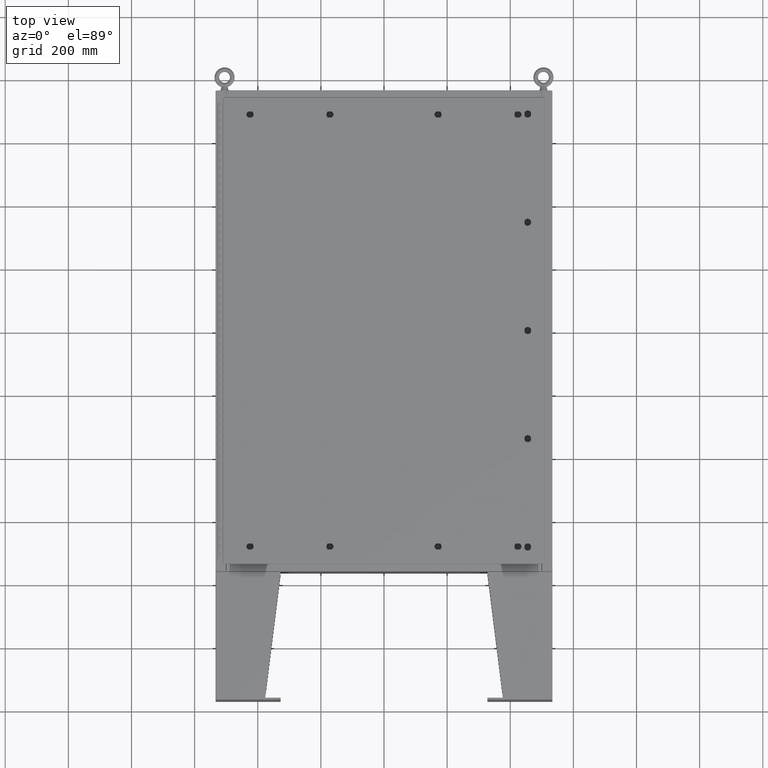
[diagram: clean part render]
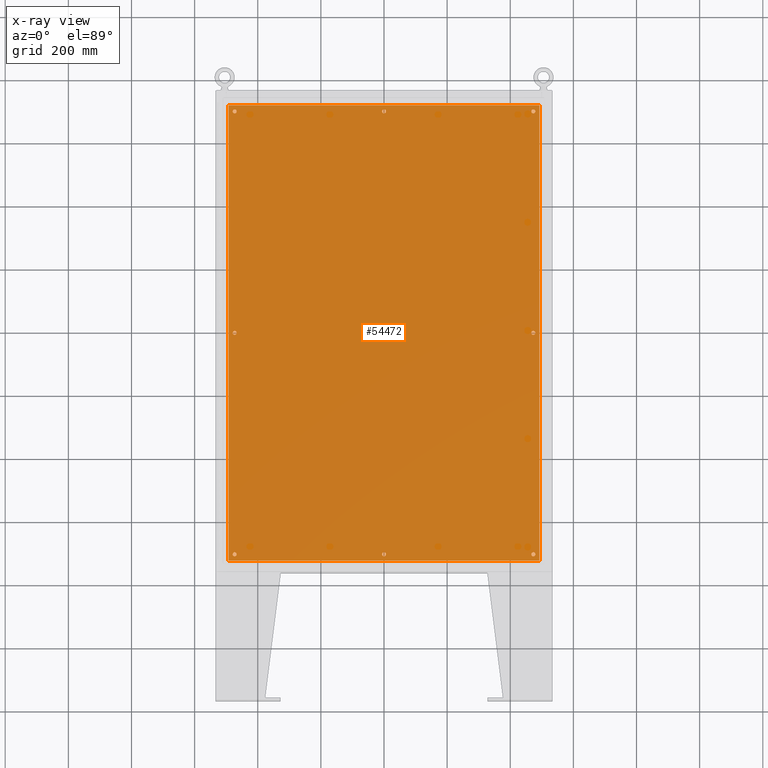
[diagram: x-ray — body ghosted, one internal face saturated and labeled with its STEP entity id]
A machine part, top view, then the same camera in x-ray: the body is ghosted and one INTERNAL B-rep face — a face not visible from any outside direction — is saturated and labeled: STEP entity #54472.
In plain terms, the highlighted planar face has unit normal (0, 0, -1).
Its self-contained STEP definition (entity closure, byte-faithful):
#238 = CARTESIAN_POINT ( 'NONE',  ( 18.62500000000000000, 3.731924441611932400E-015, -0.1039999999999999800 ) ) ;
#397 = DIRECTION ( 'NONE',  ( -1.000000000000000000, 0.0000000000000000000, 0.0000000000000000000 ) ) ;
#552 = CARTESIAN_POINT ( 'NONE',  ( 18.37500000000000000, 3.762540611590616200E-015, -0.1039999999999999800 ) ) ;
#802 = EDGE_CURVE ( 'NONE', #20901, #21294, #6926, .T. ) ;
#921 = ORIENTED_EDGE ( 'NONE', *, *, #35698, .T. ) ;
#1054 = VERTEX_POINT ( 'NONE', #63077 ) ;
#1349 = VERTEX_POINT ( 'NONE', #25678 ) ;
#1563 = DIRECTION ( 'NONE',  ( -1.000000000000000000, 0.0000000000000000000, 0.0000000000000000000 ) ) ;
#2203 = CIRCLE ( 'NONE', #14287, 0.2499999999999987000 ) ;
#2250 = CARTESIAN_POINT ( 'NONE',  ( 0.0000000000000000000, 0.0000000000000000000, -0.1039999999999999800 ) ) ;
#2953 = EDGE_CURVE ( 'NONE', #40639, #26483, #16560, .T. ) ;
#3085 = ORIENTED_EDGE ( 'NONE', *, *, #35226, .F. ) ;
#3302 = EDGE_LOOP ( 'NONE', ( #43450, #26774 ) ) ;
#3629 = DIRECTION ( 'NONE',  ( -0.0000000000000000000, -0.0000000000000000000, 1.000000000000000000 ) ) ;
#4169 = CARTESIAN_POINT ( 'NONE',  ( -19.49999999999999600, -28.38300000000000300, -0.1040000000000009400 ) ) ;
#4331 = ORIENTED_EDGE ( 'NONE', *, *, #4788, .T. ) ;
#4359 = EDGE_LOOP ( 'NONE', ( #35251, #921 ) ) ;
#4786 = AXIS2_PLACEMENT_3D ( 'NONE', #13546, #47581, #18401 ) ;
#4788 = EDGE_CURVE ( 'NONE', #8016, #40763, #2203, .T. ) ;
#5134 = DIRECTION ( 'NONE',  ( -1.000000000000000000, 0.0000000000000000000, 0.0000000000000000000 ) ) ;
#5339 = CIRCLE ( 'NONE', #6068, 0.2499999999999987000 ) ;
#5393 = DIRECTION ( 'NONE',  ( -1.000000000000000000, 0.0000000000000000000, 0.0000000000000000000 ) ) ;
#5593 = CIRCLE ( 'NONE', #4786, 0.2500000000000008900 ) ;
#6068 = AXIS2_PLACEMENT_3D ( 'NONE', #22383, #56449, #27227 ) ;
#6337 = VECTOR ( 'NONE', #43021, 39.37007874015748100 ) ;
#6926 = CIRCLE ( 'NONE', #51212, 0.2499999999999998600 ) ;
#7458 = CIRCLE ( 'NONE', #40941, 0.2499999999999987000 ) ;
#8016 = VERTEX_POINT ( 'NONE', #23096 ) ;
#8489 = DIRECTION ( 'NONE',  ( -0.0000000000000000000, -0.0000000000000000000, 1.000000000000000000 ) ) ;
#8505 = CARTESIAN_POINT ( 'NONE',  ( 18.87500000000000000, 3.731924441611932400E-015, -0.1039999999999999800 ) ) ;
#10306 = DIRECTION ( 'NONE',  ( -0.0000000000000000000, -0.0000000000000000000, 1.000000000000000000 ) ) ;
#11072 = DIRECTION ( 'NONE',  ( -0.0000000000000000000, -0.0000000000000000000, 1.000000000000000000 ) ) ;
#11218 = CIRCLE ( 'NONE', #48900, 0.2500000000000008900 ) ;
#11294 = FACE_BOUND ( 'NONE', #52967, .T. ) ;
#11432 = DIRECTION ( 'NONE',  ( -0.0000000000000000000, -0.0000000000000000000, 1.000000000000000000 ) ) ;
#12913 = AXIS2_PLACEMENT_3D ( 'NONE', #49356, #20166, #54276 ) ;
#13096 = DIRECTION ( 'NONE',  ( -0.0000000000000000000, -0.0000000000000000000, 1.000000000000000000 ) ) ;
#13416 = VERTEX_POINT ( 'NONE', #552 ) ;
#13546 = CARTESIAN_POINT ( 'NONE',  ( -18.62500000000000400, 27.62500000000000400, -0.1039999999999999800 ) ) ;
#14287 = AXIS2_PLACEMENT_3D ( 'NONE', #14709, #10306, #5393 ) ;
#14709 = CARTESIAN_POINT ( 'NONE',  ( 18.62500000000000000, 27.62500000000000400, -0.1039999999999999800 ) ) ;
#14783 = EDGE_CURVE ( 'NONE', #54466, #20269, #19058, .T. ) ;
#15222 = CIRCLE ( 'NONE', #53174, 0.2500000000000011700 ) ;
#15926 = CARTESIAN_POINT ( 'NONE',  ( 19.50000000000000000, 28.38300000000000300, -0.1040000000000009400 ) ) ;
#16150 = EDGE_LOOP ( 'NONE', ( #3085, #61255, #50426, #27772 ) ) ;
#16560 = CIRCLE ( 'NONE', #56608, 0.2500000000000008900 ) ;
#16591 = ORIENTED_EDGE ( 'NONE', *, *, #37841, .T. ) ;
#17201 = CIRCLE ( 'NONE', #36296, 0.2500000000000008900 ) ;
#17451 = LINE ( 'NONE', #50393, #28868 ) ;
#17574 = DIRECTION ( 'NONE',  ( -0.0000000000000000000, -0.0000000000000000000, 1.000000000000000000 ) ) ;
#18350 = DIRECTION ( 'NONE',  ( -1.000000000000000000, 0.0000000000000000000, 0.0000000000000000000 ) ) ;
#18401 = DIRECTION ( 'NONE',  ( -1.000000000000000000, 0.0000000000000000000, 0.0000000000000000000 ) ) ;
#18446 = CARTESIAN_POINT ( 'NONE',  ( -18.87500000000000000, -7.992687152332741600E-016, -0.1039999999999999800 ) ) ;
#18750 = EDGE_LOOP ( 'NONE', ( #16591, #4331 ) ) ;
#18844 = EDGE_LOOP ( 'NONE', ( #37866, #47006 ) ) ;
#19058 = LINE ( 'NONE', #15926, #30495 ) ;
#19404 = AXIS2_PLACEMENT_3D ( 'NONE', #40161, #11072, #45098 ) ;
#20166 = DIRECTION ( 'NONE',  ( -0.0000000000000000000, -0.0000000000000000000, 1.000000000000000000 ) ) ;
#20269 = VERTEX_POINT ( 'NONE', #44863 ) ;
#20468 = VERTEX_POINT ( 'NONE', #28148 ) ;
#20901 = VERTEX_POINT ( 'NONE', #27836 ) ;
#21294 = VERTEX_POINT ( 'NONE', #24922 ) ;
#21390 = VERTEX_POINT ( 'NONE', #47805 ) ;
#21393 = DIRECTION ( 'NONE',  ( -0.0000000000000000000, -0.0000000000000000000, 1.000000000000000000 ) ) ;
#21594 = EDGE_CURVE ( 'NONE', #1349, #1054, #25989, .T. ) ;
#22383 = CARTESIAN_POINT ( 'NONE',  ( -18.62500000000000000, -27.62500000000000400, -0.1039999999999999800 ) ) ;
#22713 = EDGE_CURVE ( 'NONE', #20468, #21390, #15222, .T. ) ;
#22821 = LINE ( 'NONE', #34237, #32690 ) ;
#23092 = CIRCLE ( 'NONE', #44219, 0.2500000000000008900 ) ;
#23096 = CARTESIAN_POINT ( 'NONE',  ( 18.37500000000000400, 27.62500000000000400, -0.1039999999999999800 ) ) ;
#24187 = FACE_BOUND ( 'NONE', #37320, .T. ) ;
#24898 = DIRECTION ( 'NONE',  ( -0.0000000000000000000, -0.0000000000000000000, 1.000000000000000000 ) ) ;
#24922 = CARTESIAN_POINT ( 'NONE',  ( -0.2499999999999998600, 27.62500000000000400, -0.1039999999999999800 ) ) ;
#25448 = EDGE_CURVE ( 'NONE', #48278, #54466, #22821, .T. ) ;
#25678 = CARTESIAN_POINT ( 'NONE',  ( 18.87500000000000000, -27.62500000000000400, -0.1039999999999999800 ) ) ;
#25695 = FACE_BOUND ( 'NONE', #18844, .T. ) ;
#25989 = CIRCLE ( 'NONE', #31882, 0.2499999999999987000 ) ;
#26272 = DIRECTION ( 'NONE',  ( 0.0000000000000000000, -1.000000000000000000, 0.0000000000000000000 ) ) ;
#26483 = VERTEX_POINT ( 'NONE', #28542 ) ;
#26580 = DIRECTION ( 'NONE',  ( -1.000000000000000000, 0.0000000000000000000, -0.0000000000000000000 ) ) ;
#26774 = ORIENTED_EDGE ( 'NONE', *, *, #52008, .T. ) ;
#27227 = DIRECTION ( 'NONE',  ( -1.000000000000000000, 0.0000000000000000000, 0.0000000000000000000 ) ) ;
#27353 = EDGE_CURVE ( 'NONE', #1054, #1349, #50100, .T. ) ;
#27448 = ORIENTED_EDGE ( 'NONE', *, *, #22713, .T. ) ;
#27772 = ORIENTED_EDGE ( 'NONE', *, *, #25448, .F. ) ;
#27836 = CARTESIAN_POINT ( 'NONE',  ( 0.2499999999999998600, 27.62500000000000400, -0.1039999999999999800 ) ) ;
#28148 = CARTESIAN_POINT ( 'NONE',  ( -0.2500000000000011700, -27.62500000000000400, -0.1039999999999999800 ) ) ;
#28542 = CARTESIAN_POINT ( 'NONE',  ( -18.37500000000000000, -8.298848852119578500E-016, -0.1039999999999999800 ) ) ;
#28670 = CARTESIAN_POINT ( 'NONE',  ( -18.62500000000000000, -27.62500000000000400, -0.1039999999999999800 ) ) ;
#28757 = FACE_BOUND ( 'NONE', #4359, .T. ) ;
#28868 = VECTOR ( 'NONE', #26272, 39.37007874015748100 ) ;
#29015 = EDGE_CURVE ( 'NONE', #36059, #13416, #42269, .T. ) ;
#29331 = DIRECTION ( 'NONE',  ( 0.0000000000000000000, 1.000000000000000000, 0.0000000000000000000 ) ) ;
#29444 = DIRECTION ( 'NONE',  ( -0.0000000000000000000, -0.0000000000000000000, 1.000000000000000000 ) ) ;
#30266 = CARTESIAN_POINT ( 'NONE',  ( -18.87500000000000400, 27.62500000000000400, -0.1039999999999999800 ) ) ;
#30495 = VECTOR ( 'NONE', #59045, 39.37007874015748100 ) ;
#30634 = DIRECTION ( 'NONE',  ( -0.0000000000000000000, -0.0000000000000000000, 1.000000000000000000 ) ) ;
#30888 = CARTESIAN_POINT ( 'NONE',  ( 18.62500000000000000, -27.62500000000000400, -0.1039999999999999800 ) ) ;
#31265 = CARTESIAN_POINT ( 'NONE',  ( 19.38299999999999900, -28.38299999999999600, -0.1040000000000009100 ) ) ;
#31431 = EDGE_LOOP ( 'NONE', ( #43768, #27448 ) ) ;
#31882 = AXIS2_PLACEMENT_3D ( 'NONE', #30888, #17574, #18350 ) ;
#32678 = CARTESIAN_POINT ( 'NONE',  ( 0.0000000000000000000, -27.62500000000000400, -0.1039999999999999800 ) ) ;
#32690 = VECTOR ( 'NONE', #29331, 39.37007874015748100 ) ;
#33052 = VERTEX_POINT ( 'NONE', #33739 ) ;
#33264 = VERTEX_POINT ( 'NONE', #30266 ) ;
#33586 = DIRECTION ( 'NONE',  ( -1.000000000000000000, 0.0000000000000000000, 0.0000000000000000000 ) ) ;
#33739 = CARTESIAN_POINT ( 'NONE',  ( -18.87500000000000000, -27.62500000000000400, -0.1039999999999999800 ) ) ;
#34211 = DIRECTION ( 'NONE',  ( -0.0000000000000000000, -0.0000000000000000000, 1.000000000000000000 ) ) ;
#34237 = CARTESIAN_POINT ( 'NONE',  ( 19.38299999999999900, -28.38299999999999600, -0.1040000000000009100 ) ) ;
#35226 = EDGE_CURVE ( 'NONE', #35380, #48278, #46647, .T. ) ;
#35251 = ORIENTED_EDGE ( 'NONE', *, *, #802, .T. ) ;
#35380 = VERTEX_POINT ( 'NONE', #54316 ) ;
#35614 = FACE_OUTER_BOUND ( 'NONE', #16150, .T. ) ;
#35633 = EDGE_CURVE ( 'NONE', #21390, #20468, #36027, .T. ) ;
#35698 = EDGE_CURVE ( 'NONE', #21294, #20901, #44397, .T. ) ;
#36027 = CIRCLE ( 'NONE', #12913, 0.2500000000000011700 ) ;
#36059 = VERTEX_POINT ( 'NONE', #8505 ) ;
#36296 = AXIS2_PLACEMENT_3D ( 'NONE', #42206, #13096, #47114 ) ;
#36982 = ORIENTED_EDGE ( 'NONE', *, *, #27353, .T. ) ;
#37153 = FACE_BOUND ( 'NONE', #31431, .T. ) ;
#37320 = EDGE_LOOP ( 'NONE', ( #44515, #47032 ) ) ;
#37574 = CARTESIAN_POINT ( 'NONE',  ( 18.62500000000000000, 27.62500000000000400, -0.1039999999999999800 ) ) ;
#37587 = DIRECTION ( 'NONE',  ( -1.000000000000000000, 0.0000000000000000000, 0.0000000000000000000 ) ) ;
#37841 = EDGE_CURVE ( 'NONE', #40763, #8016, #43527, .T. ) ;
#37866 = ORIENTED_EDGE ( 'NONE', *, *, #46357, .T. ) ;
#38692 = VERTEX_POINT ( 'NONE', #41441 ) ;
#40161 = CARTESIAN_POINT ( 'NONE',  ( 0.0000000000000000000, 27.62500000000000400, -0.1039999999999999800 ) ) ;
#40450 = ORIENTED_EDGE ( 'NONE', *, *, #47398, .T. ) ;
#40532 = CARTESIAN_POINT ( 'NONE',  ( 18.62500000000000000, -27.62500000000000400, -0.1039999999999999800 ) ) ;
#40639 = VERTEX_POINT ( 'NONE', #18446 ) ;
#40763 = VERTEX_POINT ( 'NONE', #58280 ) ;
#40941 = AXIS2_PLACEMENT_3D ( 'NONE', #28670, #62762, #33586 ) ;
#41441 = CARTESIAN_POINT ( 'NONE',  ( -18.37500000000000400, 27.62500000000000400, -0.1039999999999999800 ) ) ;
#42206 = CARTESIAN_POINT ( 'NONE',  ( 18.62500000000000000, 3.731924441611932400E-015, -0.1039999999999999800 ) ) ;
#42269 = CIRCLE ( 'NONE', #56343, 0.2500000000000008900 ) ;
#42467 = DIRECTION ( 'NONE',  ( -1.000000000000000000, 0.0000000000000000000, 0.0000000000000000000 ) ) ;
#43021 = DIRECTION ( 'NONE',  ( 1.000000000000000000, -0.0000000000000000000, -0.0000000000000000000 ) ) ;
#43450 = ORIENTED_EDGE ( 'NONE', *, *, #51450, .T. ) ;
#43527 = CIRCLE ( 'NONE', #58694, 0.2499999999999987000 ) ;
#43768 = ORIENTED_EDGE ( 'NONE', *, *, #35633, .T. ) ;
#44219 = AXIS2_PLACEMENT_3D ( 'NONE', #59819, #30634, #1563 ) ;
#44397 = CIRCLE ( 'NONE', #19404, 0.2499999999999998600 ) ;
#44515 = ORIENTED_EDGE ( 'NONE', *, *, #44971, .T. ) ;
#44863 = CARTESIAN_POINT ( 'NONE',  ( -19.38299999999999900, 28.38299999999999600, -0.1040000000000052800 ) ) ;
#44971 = EDGE_CURVE ( 'NONE', #51208, #33052, #5339, .T. ) ;
#45098 = DIRECTION ( 'NONE',  ( -1.000000000000000000, 0.0000000000000000000, 0.0000000000000000000 ) ) ;
#45445 = DIRECTION ( 'NONE',  ( -1.000000000000000000, 0.0000000000000000000, 0.0000000000000000000 ) ) ;
#46357 = EDGE_CURVE ( 'NONE', #26483, #40639, #11218, .T. ) ;
#46647 = LINE ( 'NONE', #4169, #6337 ) ;
#47006 = ORIENTED_EDGE ( 'NONE', *, *, #2953, .T. ) ;
#47032 = ORIENTED_EDGE ( 'NONE', *, *, #60142, .T. ) ;
#47114 = DIRECTION ( 'NONE',  ( -1.000000000000000000, 0.0000000000000000000, 0.0000000000000000000 ) ) ;
#47398 = EDGE_CURVE ( 'NONE', #13416, #36059, #17201, .T. ) ;
#47581 = DIRECTION ( 'NONE',  ( -0.0000000000000000000, -0.0000000000000000000, 1.000000000000000000 ) ) ;
#47805 = CARTESIAN_POINT ( 'NONE',  ( 0.2500000000000011700, -27.62500000000000400, -0.1039999999999999800 ) ) ;
#48054 = AXIS2_PLACEMENT_3D ( 'NONE', #2250, #55827, #26580 ) ;
#48278 = VERTEX_POINT ( 'NONE', #31265 ) ;
#48333 = CARTESIAN_POINT ( 'NONE',  ( -18.37500000000000400, -27.62500000000000400, -0.1039999999999999800 ) ) ;
#48573 = FACE_BOUND ( 'NONE', #3302, .T. ) ;
#48900 = AXIS2_PLACEMENT_3D ( 'NONE', #58643, #29444, #397 ) ;
#49356 = CARTESIAN_POINT ( 'NONE',  ( 0.0000000000000000000, -27.62500000000000400, -0.1039999999999999800 ) ) ;
#50100 = CIRCLE ( 'NONE', #50587, 0.2499999999999987000 ) ;
#50108 = FACE_BOUND ( 'NONE', #55200, .T. ) ;
#50393 = CARTESIAN_POINT ( 'NONE',  ( -19.38299999999999900, 28.38299999999999600, -0.1040000000000052800 ) ) ;
#50426 = ORIENTED_EDGE ( 'NONE', *, *, #14783, .F. ) ;
#50578 = CARTESIAN_POINT ( 'NONE',  ( 0.0000000000000000000, 27.62500000000000400, -0.1039999999999999800 ) ) ;
#50587 = AXIS2_PLACEMENT_3D ( 'NONE', #40532, #11432, #45445 ) ;
#50907 = PLANE ( 'NONE',  #48054 ) ;
#51208 = VERTEX_POINT ( 'NONE', #48333 ) ;
#51212 = AXIS2_PLACEMENT_3D ( 'NONE', #50578, #21393, #55473 ) ;
#51450 = EDGE_CURVE ( 'NONE', #38692, #33264, #23092, .T. ) ;
#52008 = EDGE_CURVE ( 'NONE', #33264, #38692, #5593, .T. ) ;
#52967 = EDGE_LOOP ( 'NONE', ( #56918, #36982 ) ) ;
#53174 = AXIS2_PLACEMENT_3D ( 'NONE', #32678, #3629, #37587 ) ;
#54096 = CARTESIAN_POINT ( 'NONE',  ( -18.62500000000000000, -8.298848852119578500E-016, -0.1039999999999999800 ) ) ;
#54276 = DIRECTION ( 'NONE',  ( -1.000000000000000000, 0.0000000000000000000, 0.0000000000000000000 ) ) ;
#54316 = CARTESIAN_POINT ( 'NONE',  ( -19.38299999999999900, -28.38300000000000300, -0.1040000000000009400 ) ) ;
#54466 = VERTEX_POINT ( 'NONE', #60479 ) ;
#54472 = ADVANCED_FACE ( 'NONE', ( #37153, #28757, #50108, #25695, #24187, #11294, #61526, #48573, #35614 ), #50907, .T. ) ;
#55200 = EDGE_LOOP ( 'NONE', ( #62817, #40450 ) ) ;
#55473 = DIRECTION ( 'NONE',  ( -1.000000000000000000, 0.0000000000000000000, 0.0000000000000000000 ) ) ;
#55827 = DIRECTION ( 'NONE',  ( 0.0000000000000000000, 0.0000000000000000000, -1.000000000000000000 ) ) ;
#56343 = AXIS2_PLACEMENT_3D ( 'NONE', #238, #34211, #5134 ) ;
#56449 = DIRECTION ( 'NONE',  ( -0.0000000000000000000, -0.0000000000000000000, 1.000000000000000000 ) ) ;
#56608 = AXIS2_PLACEMENT_3D ( 'NONE', #54096, #24898, #59015 ) ;
#56918 = ORIENTED_EDGE ( 'NONE', *, *, #21594, .T. ) ;
#58280 = CARTESIAN_POINT ( 'NONE',  ( 18.87500000000000000, 27.62500000000000400, -0.1039999999999999800 ) ) ;
#58643 = CARTESIAN_POINT ( 'NONE',  ( -18.62500000000000000, -8.298848852119578500E-016, -0.1039999999999999800 ) ) ;
#58683 = EDGE_CURVE ( 'NONE', #20269, #35380, #17451, .T. ) ;
#58694 = AXIS2_PLACEMENT_3D ( 'NONE', #37574, #8489, #42467 ) ;
#59015 = DIRECTION ( 'NONE',  ( -1.000000000000000000, 0.0000000000000000000, 0.0000000000000000000 ) ) ;
#59045 = DIRECTION ( 'NONE',  ( -1.000000000000000000, -0.0000000000000000000, -0.0000000000000000000 ) ) ;
#59819 = CARTESIAN_POINT ( 'NONE',  ( -18.62500000000000400, 27.62500000000000400, -0.1039999999999999800 ) ) ;
#60142 = EDGE_CURVE ( 'NONE', #33052, #51208, #7458, .T. ) ;
#60479 = CARTESIAN_POINT ( 'NONE',  ( 19.38299999999999900, 28.38299999999999600, -0.1040000000000009100 ) ) ;
#61255 = ORIENTED_EDGE ( 'NONE', *, *, #58683, .F. ) ;
#61526 = FACE_BOUND ( 'NONE', #18750, .T. ) ;
#62762 = DIRECTION ( 'NONE',  ( -0.0000000000000000000, -0.0000000000000000000, 1.000000000000000000 ) ) ;
#62817 = ORIENTED_EDGE ( 'NONE', *, *, #29015, .T. ) ;
#63077 = CARTESIAN_POINT ( 'NONE',  ( 18.37500000000000400, -27.62500000000000400, -0.1039999999999999800 ) ) ;